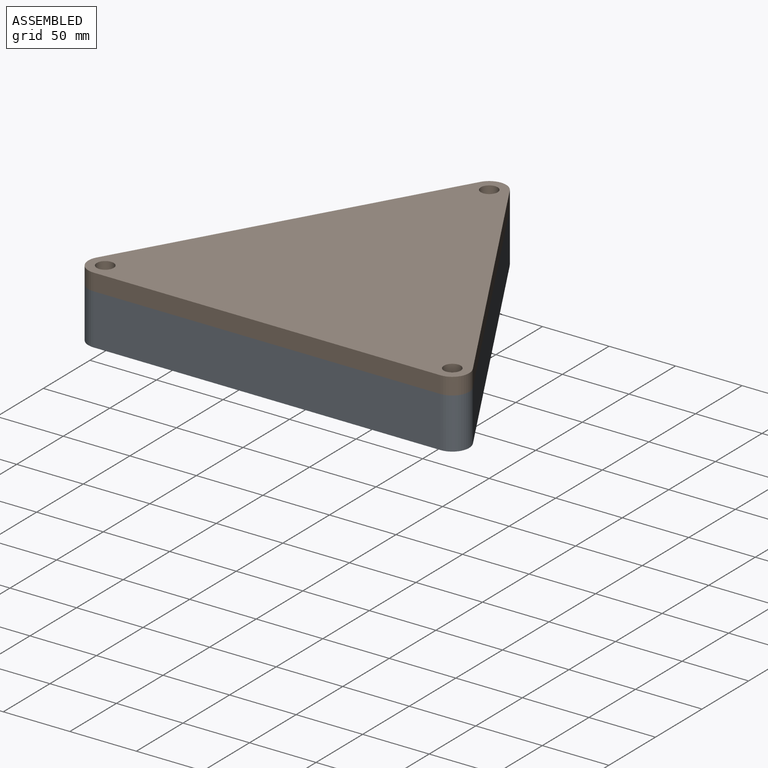
[diagram: assembled view]
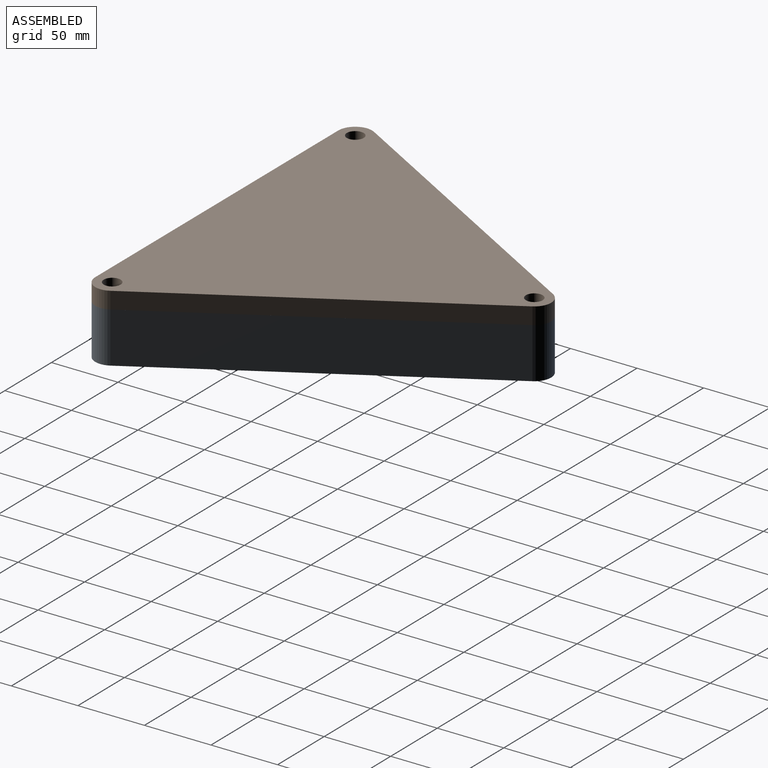
[diagram: assembled view, second angle]
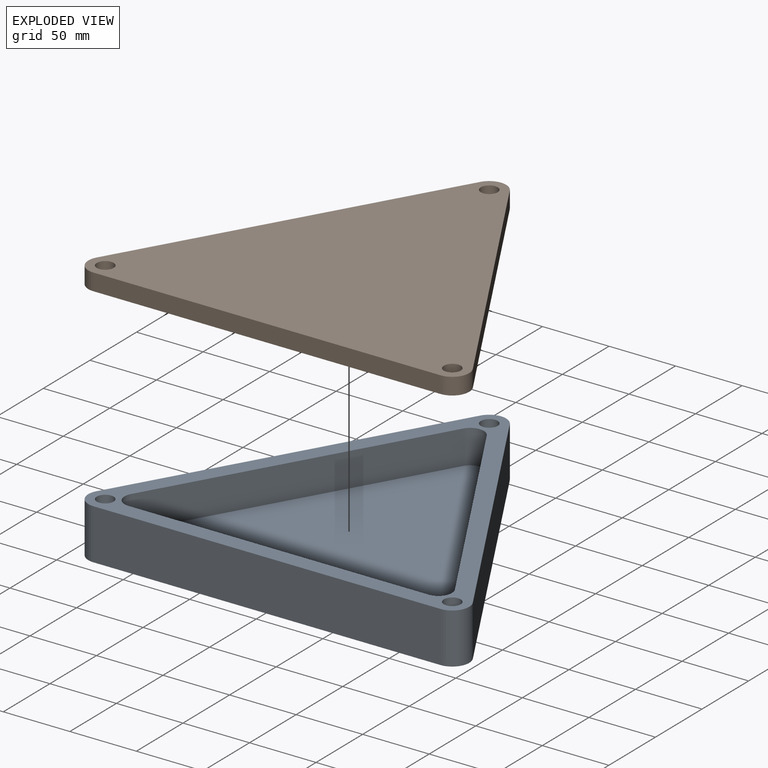
[diagram: exploded view]
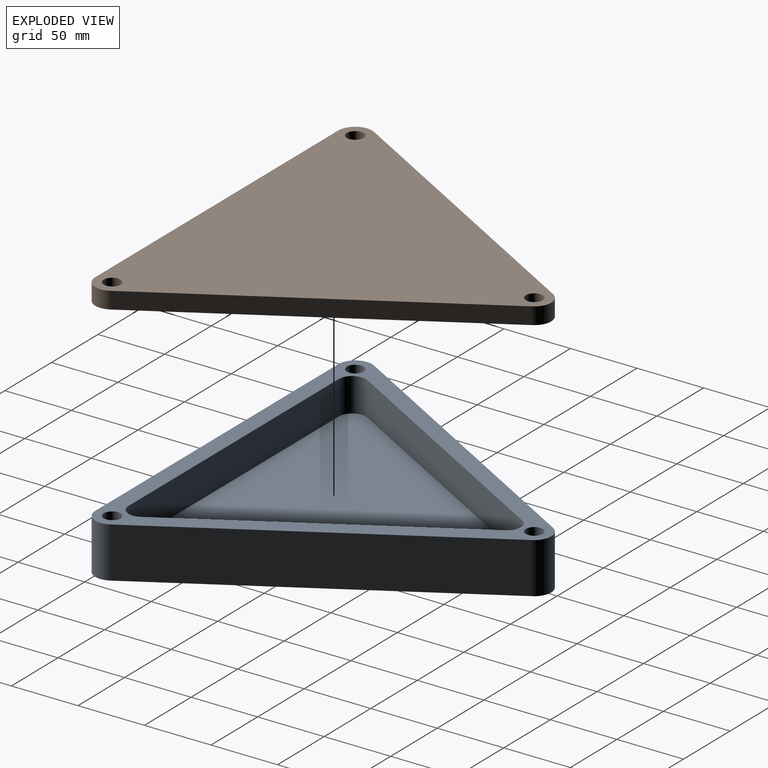
[diagram: exploded view, second angle]
ASSEMBLY  parts=2 mates=3
PART A: 21 faces, bbox 286.2x251.3x38.1 mm
  f0: cylinder r=12.7mm len=38.1mm, axis (0,0,-1), area 1013.4mm2, adj f1,f5,f6,f7
  f1: plane 260.81x38.1mm, normal (0,-1,0), area 9936.7mm2, adj f0,f2,f6,f7
  f2: cylinder r=12.7mm len=38.1mm, axis (0,0,-1), area 1013.4mm2, adj f1,f3,f6,f7
  f3: plane 225.86x130.4mm, normal (0.87,0.5,0), area 9936.7mm2, adj f2,f4,f6,f7
  f4: cylinder r=12.7mm len=38.1mm, axis (0,0,-1), area 1013.4mm2, adj f3,f5,f6,f7
  f5: plane 225.86x130.4mm, normal (-0.87,0.5,0), area 9936.7mm2, adj f0,f4,f6,f7
  f6: plane 286.21x251.26mm, normal (0,0,1), area 10275.5mm2, adj f0,f1,f2,f3,f4,f5,f8,f9
  f7: plane 286.21x251.26mm, normal (0,0,-1), area 39896.8mm2, adj f0,f1,f2,f3,f4,f5
  f8: plane 225.61x25.4mm, normal (0,1,0), area 5730.5mm2, adj f6,f11,f12,f14
  f9: plane 195.38x112.81mm, normal (-0.87,-0.5,0), area 5730.5mm2, adj f6,f11,f12,f13
  f10: plane 195.38x112.81mm, normal (0.87,-0.5,0), area 5730.5mm2, adj f6,f11,f13,f14
  f11: plane 245.93x215.7mm, normal (0,0,1), area 29241.3mm2, adj f8,f9,f10,f12,f13,f14
  f12: cylinder r=10.16mm len=25.4mm, axis (0,0,1), area 540.5mm2, adj f6,f8,f9,f11
  f13: cylinder r=10.16mm len=25.4mm, axis (0,0,1), area 540.5mm2, adj f6,f9,f10,f11
  f14: cylinder r=10.16mm len=25.4mm, axis (0,0,1), area 540.5mm2, adj f6,f8,f10,f11
  f15: cylinder r=6.35mm len=31.75mm, axis (0,0,1), area 1266.8mm2, adj f6,f16
  f16: plane 12.7x12.7mm, normal (0,0,1), area 126.7mm2, adj f15
  f17: cylinder r=6.35mm len=31.75mm, axis (0,0,1), area 1266.8mm2, adj f6,f18
  f18: plane 12.7x12.7mm, normal (0,0,1), area 126.7mm2, adj f17
  f19: cylinder r=6.35mm len=31.75mm, axis (0,0,1), area 1266.8mm2, adj f6,f20
  f20: plane 12.7x12.7mm, normal (0,0,1), area 126.7mm2, adj f19
PART B: 11 faces, bbox 286.2x251.3x12.7 mm
  f0: cylinder r=12.7mm len=19.05mm, axis (0,0,-1), area 337.8mm2, adj f1,f5,f6,f7
  f1: plane 260.81x12.7mm, normal (0,-1,0), area 3312.2mm2, adj f0,f2,f6,f7
  f2: cylinder r=12.7mm len=19.05mm, axis (0,0,-1), area 337.8mm2, adj f1,f3,f6,f7
  f3: plane 225.86x130.4mm, normal (0.87,0.5,0), area 3312.2mm2, adj f2,f4,f6,f7
  f4: cylinder r=12.7mm len=22mm, axis (0,0,-1), area 337.8mm2, adj f3,f5,f6,f7
  f5: plane 225.86x130.4mm, normal (-0.87,0.5,0), area 3312.2mm2, adj f0,f4,f6,f7
  f6: plane 286.21x251.26mm, normal (0,0,1), area 39516.8mm2, adj f0,f1,f2,f3,f4,f5,f8,f9
  f7: plane 286.21x251.26mm, normal (0,0,-1), area 39516.8mm2, adj f0,f1,f2,f3,f4,f5,f8,f9
  f8: cylinder r=6.35mm len=12.7mm, axis (0,0,1), area 506.7mm2, adj f6,f7
  f9: cylinder r=6.35mm len=12.7mm, axis (0,0,1), area 506.7mm2, adj f6,f7
  f10: cylinder r=6.35mm len=12.7mm, axis (0,0,1), area 506.7mm2, adj f6,f7
PLACE A t=(5.68,-0.01,36.83)mm
PLACE B t=(5.68,-0.01,74.93)mm
MATE cylindrical A.f2 <-> B.f2  axis (0,0,1) through (288.49,12.69,74.93)mm
MATE cylindrical B.f0 <-> A.f0  axis (0,0,1) through (27.68,12.69,87.63)mm
MATE planar B.f7 <-> A.f6  axis (0,0,-1) through (158.08,87.98,74.93)mm
